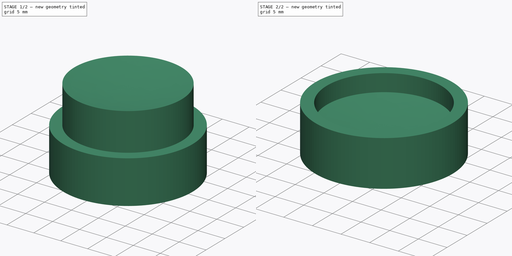
[diagram: build sequence overview — one tinted view per stage of 2, left to right]
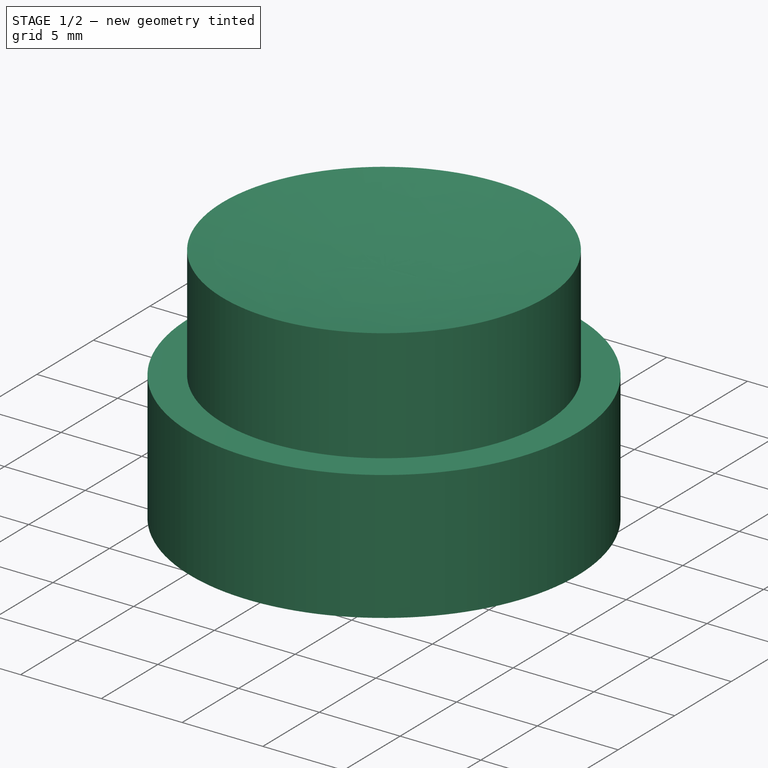
[diagram: stage 1 of 2 — iso view after this stage's code; geometry added in this stage tinted green]
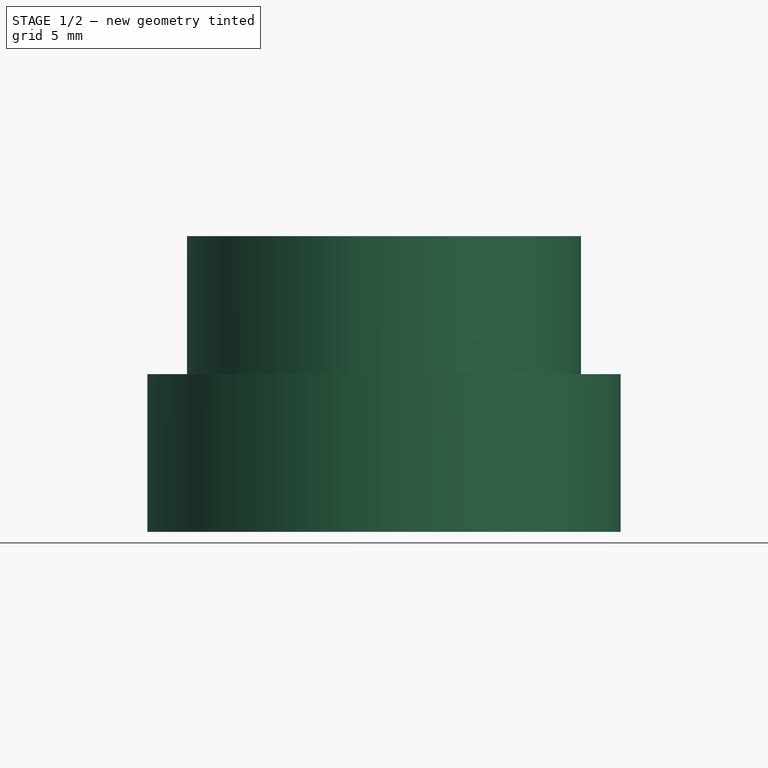
[diagram: stage 1 of 2 — front view after this stage's code; geometry added in this stage tinted green]
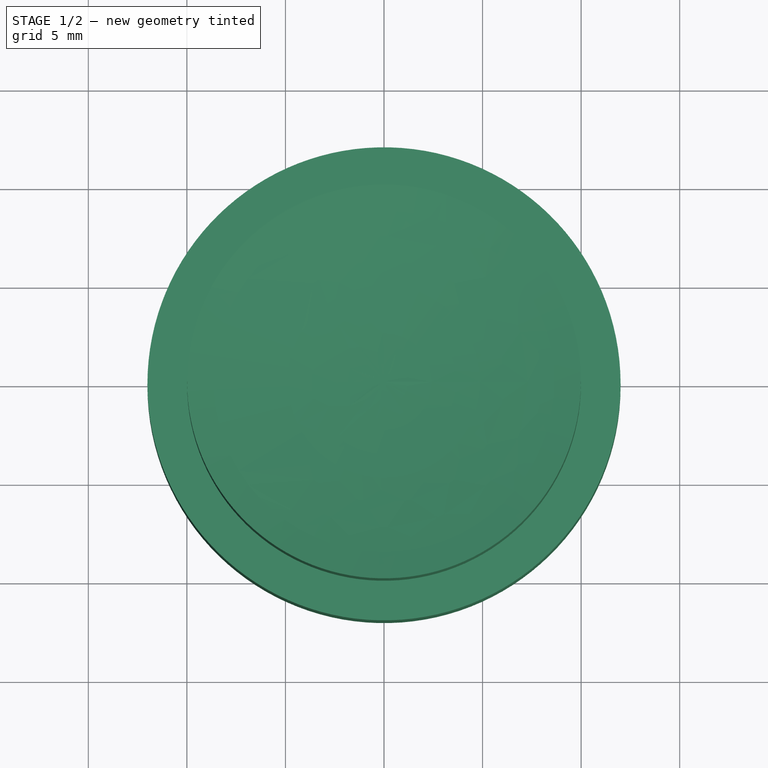
[diagram: stage 1 of 2 — top view after this stage's code; geometry added in this stage tinted green]
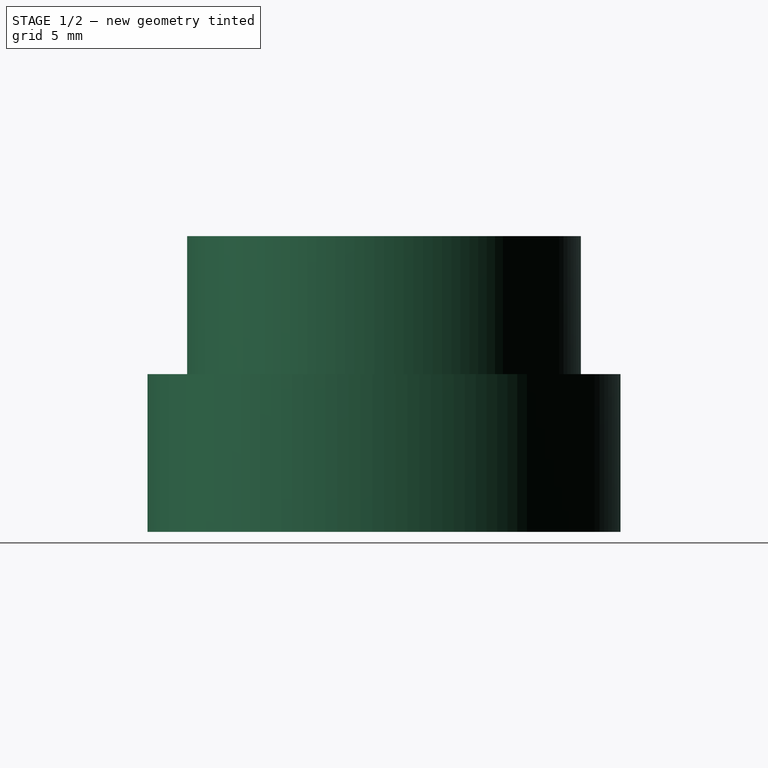
[diagram: stage 1 of 2 — right view after this stage's code; geometry added in this stage tinted green]
FCSTD DOCUMENT  (FreeCAD 0.16R5342 (Git))
Label: TestLens10_1
License: All rights reserved
LicenseURL: http://en.wikipedia.org/wiki/All_rights_reserved
objects: Part::Part2DObjectPython×1, Sketcher::SketchObject×1, PartDesign::Pad×1, Part::Revolution×1, Part::Extrusion×1, Part::Cut×1, App::DocumentObjectGroup×1, Part::Feature×1
note: 8 computed .brp shape members not serialized (recipe doc carries the construction recipe); baked Part::Feature solids carry a one-line shape summary decoded from their .brp

FEATURE [Part::Part2DObjectPython] BSpline001  label="MainParabola"  # Draft 2D object (typed FeaturePython)
  Closed = false
  MakeFace = true
  Placement = pos=(0,0,7) rot=(0,0,1;0rad)
  Points = (1000) [(0,0,0),(0.01,0,1e-06),(0.02,0,4e-06),(0.03,0,9e-06),(0.04,0,1.6e-05),(0.05,0,2.5e-05),(0.06,0,3.6e-05),(0.07,0,4.9e-05),(0.08,0,6.4e-05),+991 more]
FEATURE [Sketcher::SketchObject] Sketch  label="Base"
  sketch-geometry (1):
    g0: Circle CenterX=0 CenterY=0 CenterZ=0 NormalX=0 NormalY=0 NormalZ=1 Radius=12
  constraints (2):
    c: Coincident(g0,g-1)
    c: Radius(g0) = 12
FEATURE [PartDesign::Pad] Pad  label="Base001"
  Length = 8
  Length2 = 100
  Sketch = -> Sketch
  Type = 0
FEATURE [Part::Revolution] Revolve  label="Paraboloid"
  Angle = 360
  Axis = (0,0,1)
  Base = (0,0,0)
  Solid = false
  Source = -> BSpline001
FEATURE [Part::Extrusion] Extrude  label="LensCut"
  Base = -> Revolve
  Dir = (0,0,10)
  Placement = pos=(0,0,-3) rot=(0,0,1;0rad)
  Solid = true
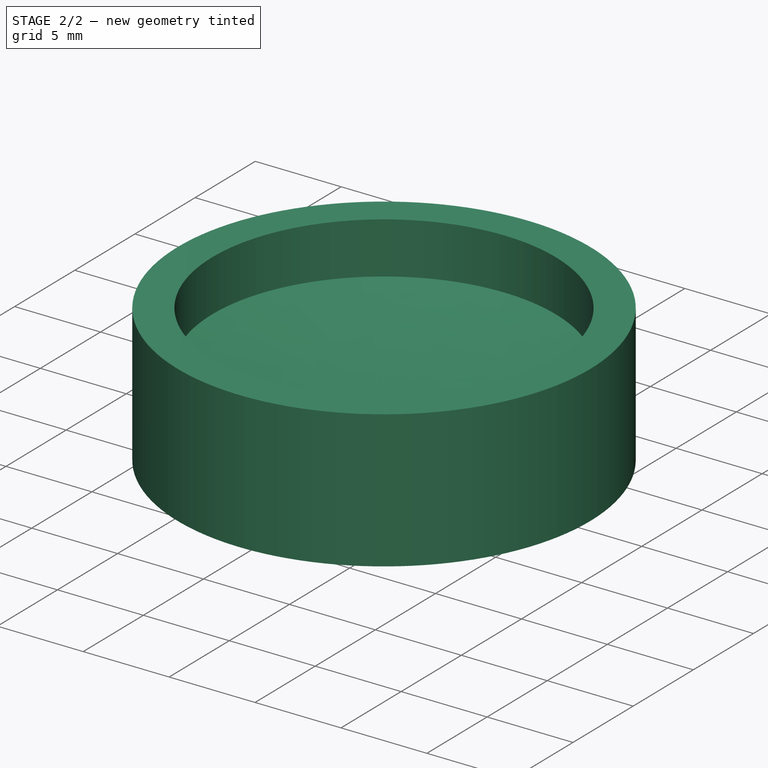
[diagram: stage 2 of 2 — iso view after this stage's code; geometry added in this stage tinted green]
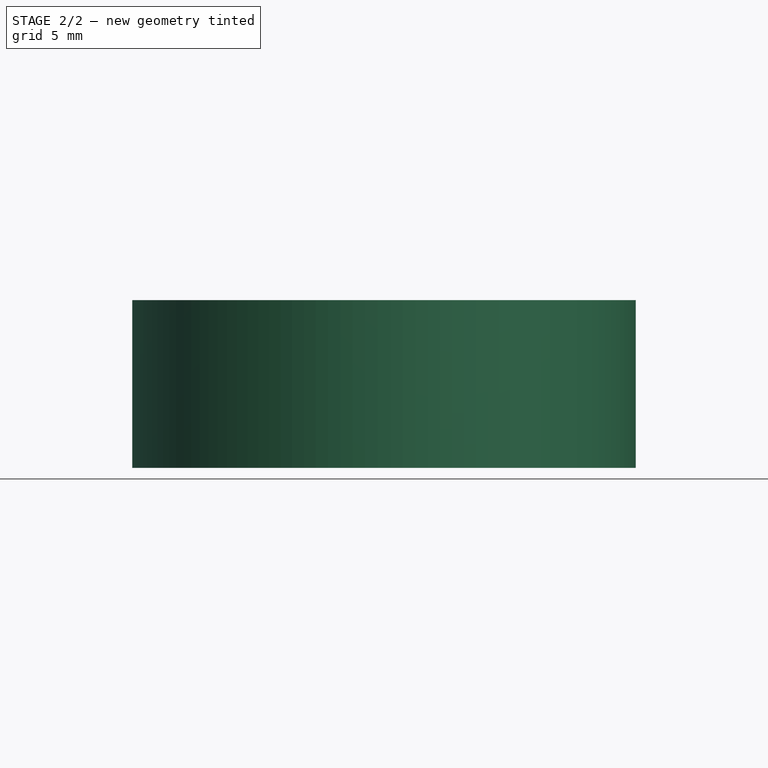
[diagram: stage 2 of 2 — front view after this stage's code; geometry added in this stage tinted green]
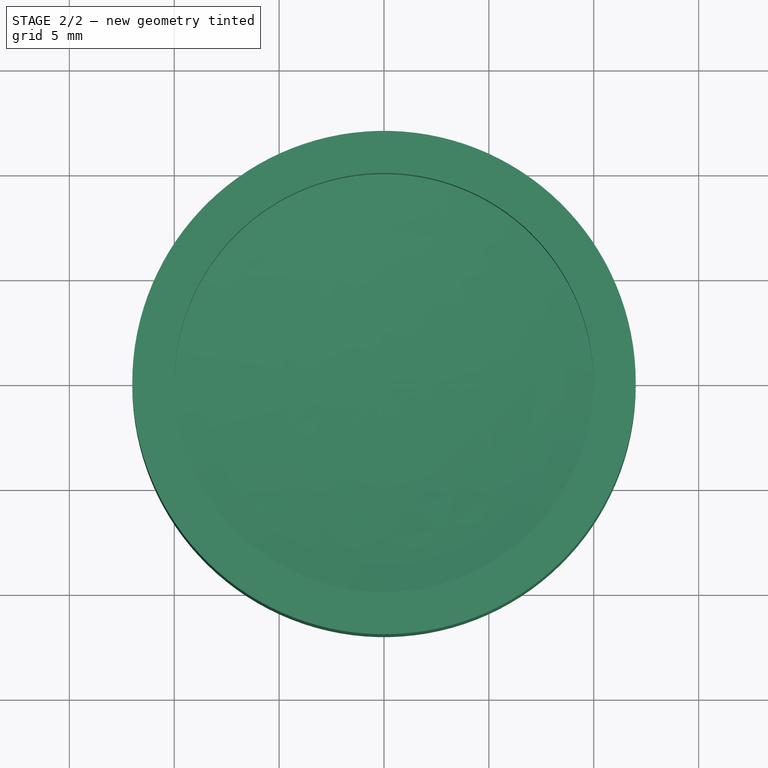
[diagram: stage 2 of 2 — top view after this stage's code; geometry added in this stage tinted green]
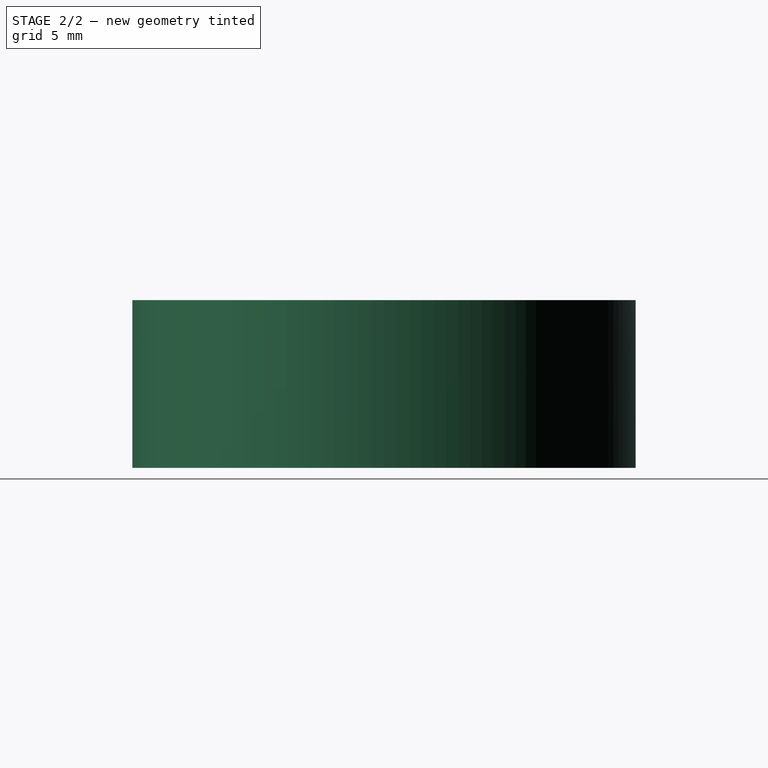
[diagram: stage 2 of 2 — right view after this stage's code; geometry added in this stage tinted green]
FEATURE [Part::Cut] Cut  label="LensMold"
  Base = -> Pad
  Tool = -> Extrude
FEATURE [App::DocumentObjectGroup] Group  label="src"
  Group = -> [Cut]
FEATURE [Part::Feature] Cut001  label="TestLens10_1"
  shape: bbox 24 x 24 x 8 mm, 5 faces (baked)
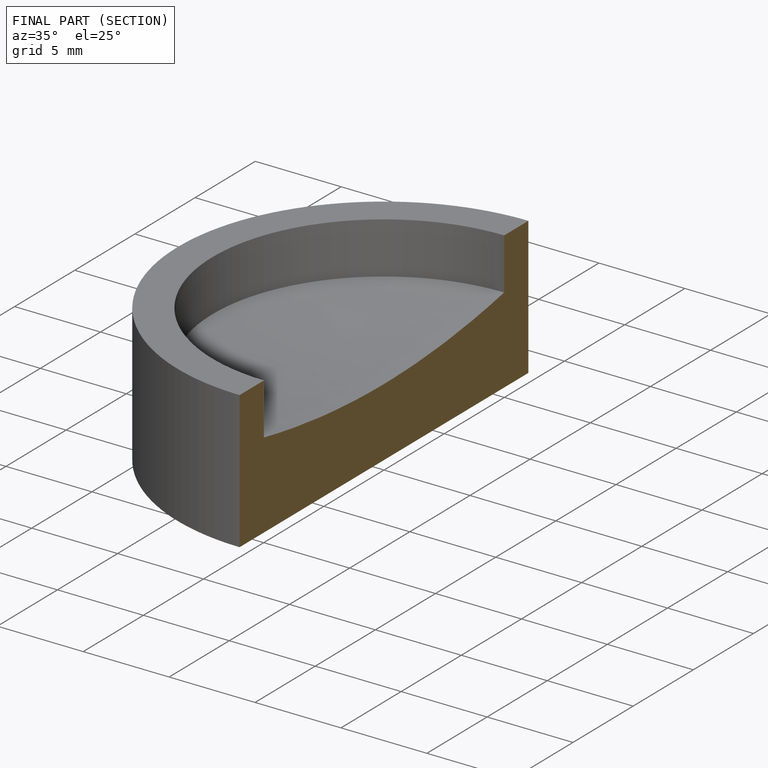
[diagram: finished part — half-section view (interior)]
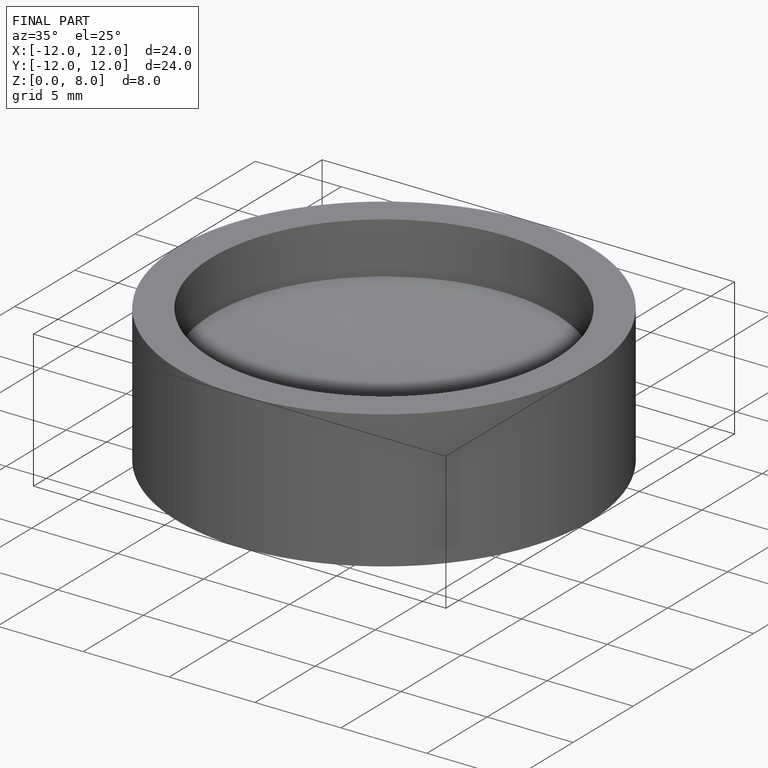
[diagram: finished part — iso view with bounding-box wireframe]
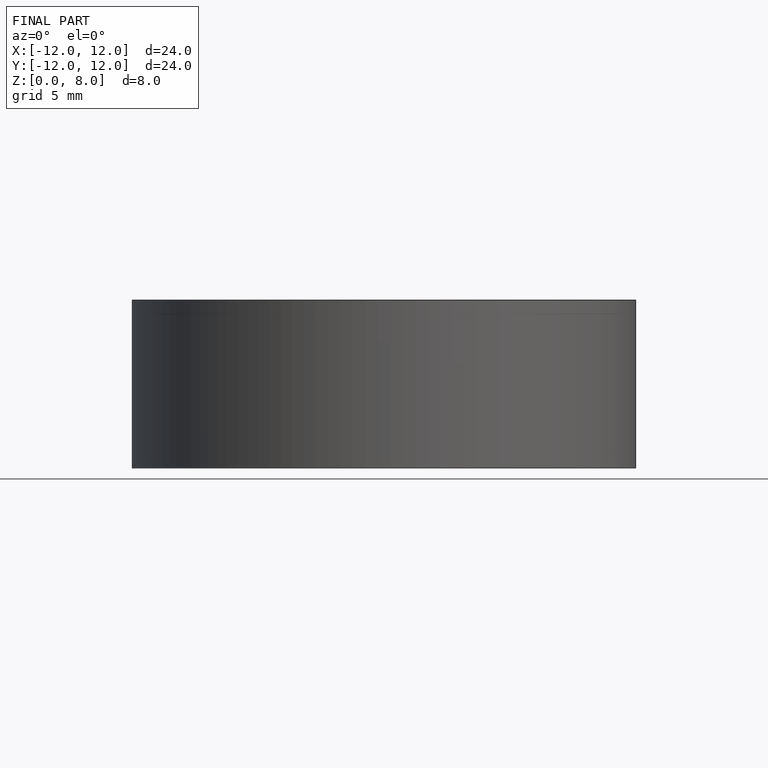
[diagram: finished part — front view with bounding-box wireframe]
